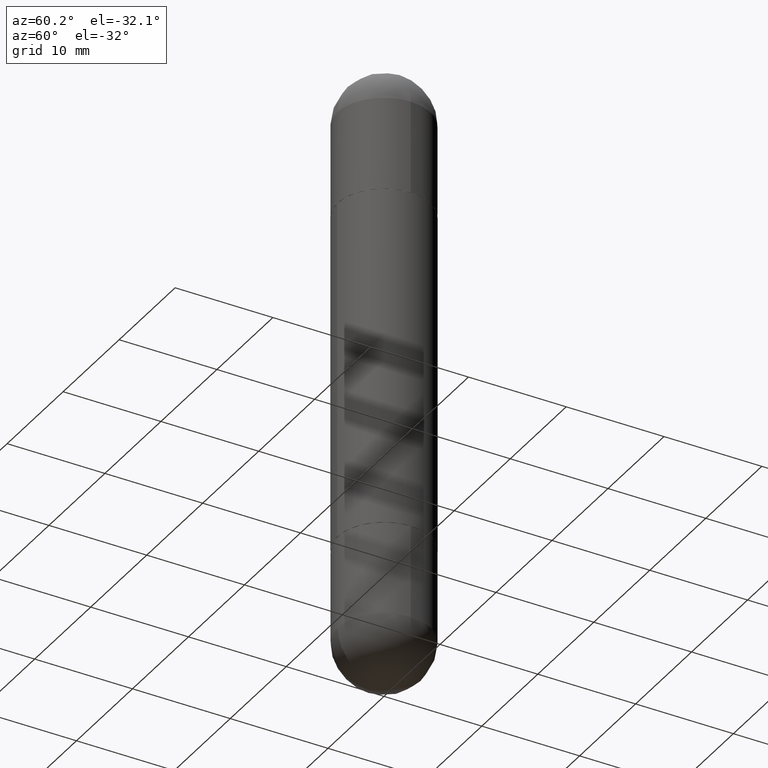
[diagram: clean part render]
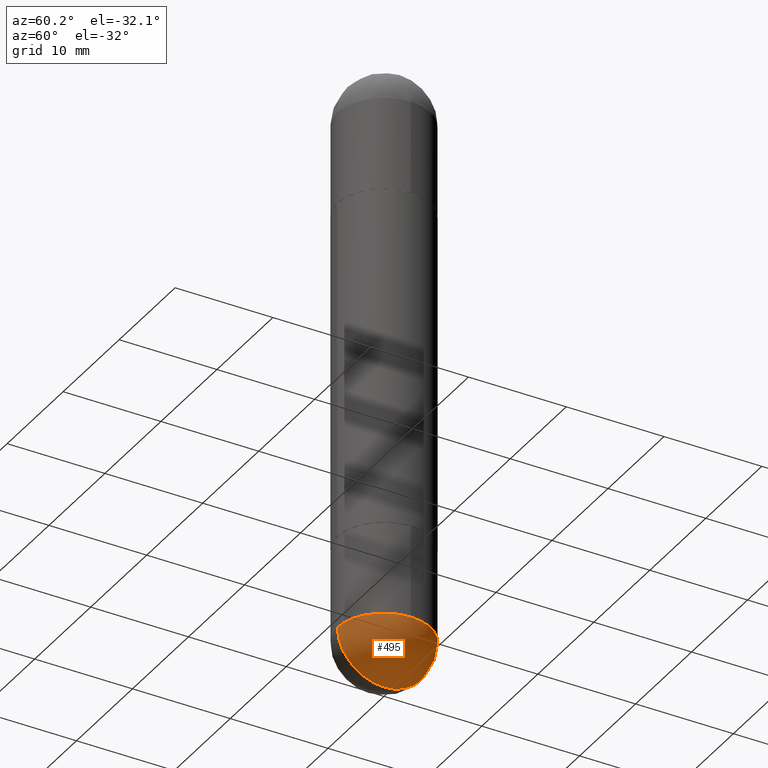
[diagram: same view with one face highlighted and labeled with its STEP entity id]
A machine part, auxiliary view. The second image highlights one B-rep face of the part: STEP entity #495.
In plain terms, the highlighted spherical surface has radius 4.7625 mm.
Its self-contained STEP definition (entity closure, byte-faithful):
#26 = EDGE_CURVE ( 'NONE', #746, #62, #332, .T. ) ;
#42 = FACE_OUTER_BOUND ( 'NONE', #473, .T. ) ;
#53 = CARTESIAN_POINT ( 'NONE',  ( 5.324026836389243254E-29, -8.548232964214825368E-15, -2.312500000000000000 ) ) ;
#62 = VERTEX_POINT ( 'NONE', #461 ) ;
#91 = CIRCLE ( 'NONE', #776, 0.1875000000000000555 ) ;
#129 = DIRECTION ( 'NONE',  ( 6.982962677686266711E-15, 1.000000000000000000, -2.913971193241875639E-15 ) ) ;
#131 = AXIS2_PLACEMENT_3D ( 'NONE', #804, #745, #129 ) ;
#135 = VERTEX_POINT ( 'NONE', #659 ) ;
#136 = EDGE_CURVE ( 'NONE', #318, #135, #177, .T. ) ;
#142 = DIRECTION ( 'NONE',  ( -7.105427357600999492E-15, -1.000000000000000000, 0.000000000000000000 ) ) ;
#157 = CARTESIAN_POINT ( 'NONE',  ( 5.655146614303128380E-29, -8.074050596074775072E-15, -2.312500000000000000 ) ) ;
#177 = CIRCLE ( 'NONE', #548, 0.1875000000000000555 ) ;
#229 = DIRECTION ( 'NONE',  ( -2.445468806185136597E-29, 3.491481338843145583E-15, 1.000000000000000000 ) ) ;
#247 = AXIS2_PLACEMENT_3D ( 'NONE', #511, #648, #142 ) ;
#252 = DIRECTION ( 'NONE',  ( 6.982962677686265922E-15, 1.000000000000000000, 0.000000000000000000 ) ) ;
#284 = DIRECTION ( 'NONE',  ( -2.445468806185136597E-29, 3.491481338843145583E-15, 1.000000000000000000 ) ) ;
#301 = CARTESIAN_POINT ( 'NONE',  ( 5.790569421510013204E-29, -9.191404651505909607E-15, -2.500000000000000000 ) ) ;
#316 = ORIENTED_EDGE ( 'NONE', *, *, #637, .F. ) ;
#318 = VERTEX_POINT ( 'NONE', #355 ) ;
#332 = CIRCLE ( 'NONE', #247, 0.1875000000000003331 ) ;
#347 = DIRECTION ( 'NONE',  ( 1.000000000000000000, -6.982962677686270655E-15, 0.000000000000000000 ) ) ;
#355 = CARTESIAN_POINT ( 'NONE',  ( 0.1875000000000000555, -8.729576217442571356E-15, -2.312500000000000000 ) ) ;
#422 = CIRCLE ( 'NONE', #520, 0.1875000000000003331 ) ;
#429 = EDGE_CURVE ( 'NONE', #746, #135, #422, .T. ) ;
#461 = CARTESIAN_POINT ( 'NONE',  ( -1.332267629550134009E-15, -0.1875000000000084932, -2.312499999999999556 ) ) ;
#473 = EDGE_LOOP ( 'NONE', ( #651, #614, #599, #316 ) ) ;
#489 = SPHERICAL_SURFACE ( 'NONE', #131, 0.1875000000000003331 ) ;
#495 = ADVANCED_FACE ( 'NONE', ( #42 ), #489, .T. ) ;
#511 = CARTESIAN_POINT ( 'NONE',  ( 5.324026836389243254E-29, -8.548232964214825368E-15, -2.312500000000000000 ) ) ;
#520 = AXIS2_PLACEMENT_3D ( 'NONE', #53, #691, #252 ) ;
#548 = AXIS2_PLACEMENT_3D ( 'NONE', #606, #229, #611 ) ;
#599 = ORIENTED_EDGE ( 'NONE', *, *, #136, .F. ) ;
#606 = CARTESIAN_POINT ( 'NONE',  ( 5.655146614303128380E-29, -8.074050596074775072E-15, -2.312500000000000000 ) ) ;
#611 = DIRECTION ( 'NONE',  ( 1.000000000000000000, -6.982962677686270655E-15, 0.000000000000000000 ) ) ;
#614 = ORIENTED_EDGE ( 'NONE', *, *, #429, .T. ) ;
#637 = EDGE_CURVE ( 'NONE', #62, #318, #91, .T. ) ;
#648 = DIRECTION ( 'NONE',  ( -1.000000000000000000, 7.105427357601001070E-15, -4.926315508542082329E-29 ) ) ;
#651 = ORIENTED_EDGE ( 'NONE', *, *, #26, .F. ) ;
#659 = CARTESIAN_POINT ( 'NONE',  ( 1.309305502066231017E-15, 0.1874999999999918954, -2.312500000000000444 ) ) ;
#691 = DIRECTION ( 'NONE',  ( 1.000000000000000000, -6.982962677686265922E-15, 4.883557194083112340E-29 ) ) ;
#745 = DIRECTION ( 'NONE',  ( -1.000000000000000000, 6.982962677686266711E-15, -4.883557194083113462E-29 ) ) ;
#746 = VERTEX_POINT ( 'NONE', #301 ) ;
#776 = AXIS2_PLACEMENT_3D ( 'NONE', #157, #284, #347 ) ;
#804 = CARTESIAN_POINT ( 'NONE',  ( 5.324026836389243254E-29, -8.548232964214825368E-15, -2.312500000000000000 ) ) ;